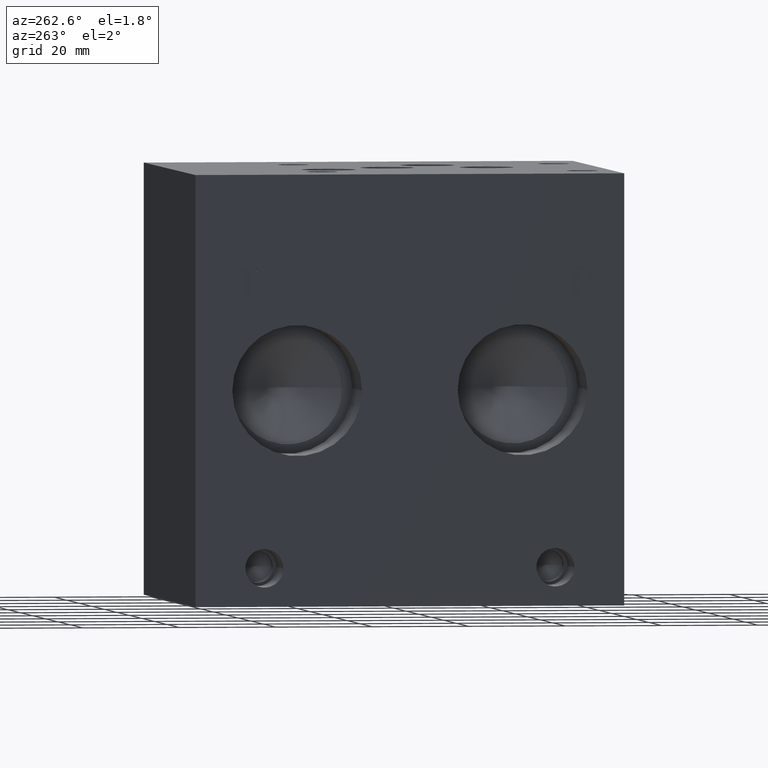
[diagram: clean part render]
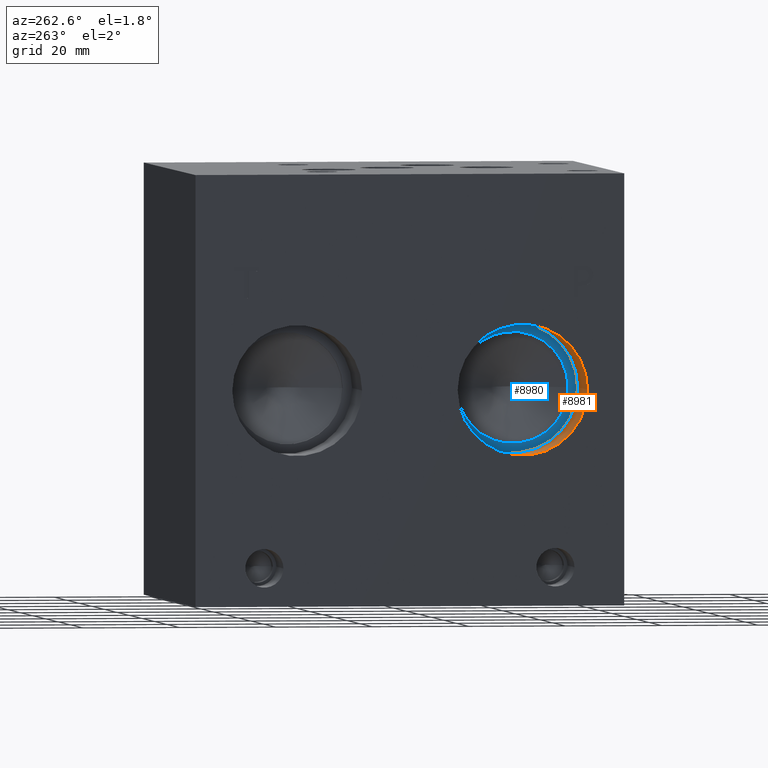
[diagram: same view with the hole feature highlighted: cylindrical wall and planar end face, labeled with their STEP entity ids]
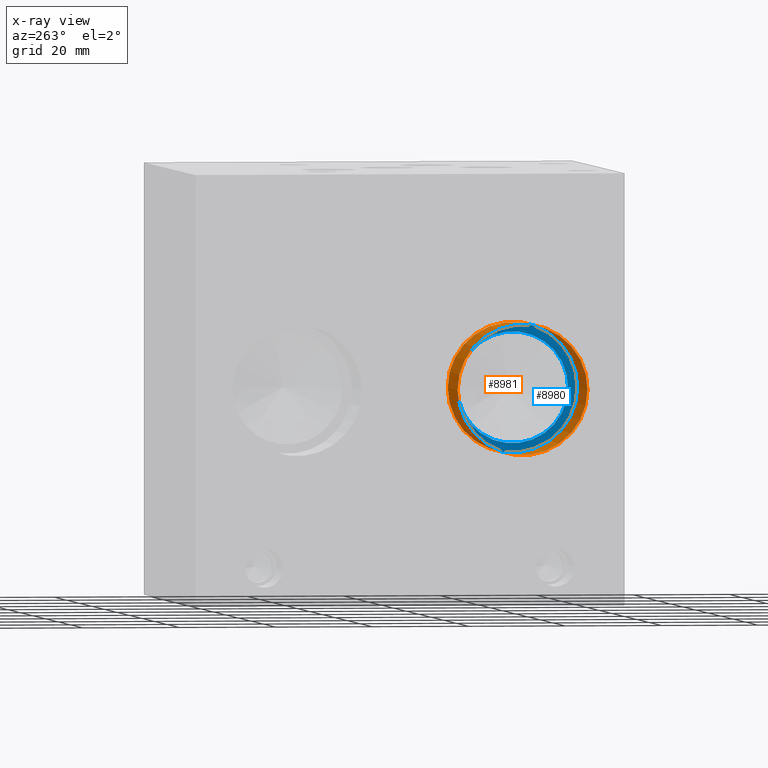
[diagram: x-ray of the same camera — body ghosted, the hole faces saturated]
A machine part, auxiliary view. The highlighted faces form one hole feature of diameter 26.924 mm: the cylindrical wall (entity #8981, orange) and its adjacent planar end face (entity #8980, blue) — they share a circular edge in the B-rep.
The next image is the same camera in x-ray (body ghosted, the hole faces saturated) — the bore reads through the body.
Wall:
#16=CYLINDRICAL_SURFACE('',#9367,13.462);
#72=CIRCLE('',#9285,13.462);
#73=CIRCLE('',#9286,13.462);
#91=CIRCLE('',#9364,13.462);
#92=CIRCLE('',#9365,13.462);
#937=FACE_OUTER_BOUND('',#1448,.T.);
#1448=EDGE_LOOP('',(#7771,#7772,#7773,#7774,#7775,#7776));
#2367=LINE('',#15107,#3250);
#3250=VECTOR('',#10970,13.462);
#4140=VERTEX_POINT('',#14402);
#4141=VERTEX_POINT('',#14403);
#4279=VERTEX_POINT('',#15100);
#4280=VERTEX_POINT('',#15101);
#5273=EDGE_CURVE('',#4140,#4141,#72,.T.);
#5274=EDGE_CURVE('',#4141,#4140,#73,.T.);
#5482=EDGE_CURVE('',#4279,#4280,#91,.T.);
#5483=EDGE_CURVE('',#4280,#4279,#92,.T.);
#5485=EDGE_CURVE('',#4141,#4280,#2367,.T.);
#7771=ORIENTED_EDGE('',*,*,#5273,.F.);
#7772=ORIENTED_EDGE('',*,*,#5274,.F.);
#7773=ORIENTED_EDGE('',*,*,#5485,.T.);
#7774=ORIENTED_EDGE('',*,*,#5482,.F.);
#7775=ORIENTED_EDGE('',*,*,#5483,.F.);
#7776=ORIENTED_EDGE('',*,*,#5485,.F.);
#8981=ADVANCED_FACE('',(#937),#16,.F.);
#9285=AXIS2_PLACEMENT_3D('',#14404,#10652,#10653);
#9286=AXIS2_PLACEMENT_3D('',#14405,#10654,#10655);
#9364=AXIS2_PLACEMENT_3D('',#15102,#10962,#10963);
#9365=AXIS2_PLACEMENT_3D('',#15103,#10964,#10965);
#9367=AXIS2_PLACEMENT_3D('',#15106,#10968,#10969);
#10652=DIRECTION('center_axis',(1.,0.,0.));
#10653=DIRECTION('ref_axis',(0.,1.,0.));
#10654=DIRECTION('center_axis',(1.,0.,0.));
#10655=DIRECTION('ref_axis',(0.,1.,0.));
#10962=DIRECTION('center_axis',(-1.,0.,0.));
#10963=DIRECTION('ref_axis',(0.,1.,0.));
#10964=DIRECTION('center_axis',(-1.,0.,0.));
#10965=DIRECTION('ref_axis',(0.,1.,0.));
#10968=DIRECTION('center_axis',(-1.,0.,0.));
#10969=DIRECTION('ref_axis',(0.,1.,0.));
#10970=DIRECTION('',(1.,0.,0.));
#14402=CARTESIAN_POINT('',(0.,34.544,44.45));
#14403=CARTESIAN_POINT('',(1.11022302462516E-15,7.62,44.45));
#14404=CARTESIAN_POINT('Origin',(0.,21.082,44.45));
#14405=CARTESIAN_POINT('Origin',(0.,21.082,44.45));
#15100=CARTESIAN_POINT('',(15.8496,34.544,44.45));
#15101=CARTESIAN_POINT('',(15.8496,7.62,44.45));
#15102=CARTESIAN_POINT('Origin',(15.8496,21.082,44.45));
#15103=CARTESIAN_POINT('Origin',(15.8496,21.082,44.45));
#15106=CARTESIAN_POINT('Origin',(7.9248,21.082,44.45));
#15107=CARTESIAN_POINT('',(7.9248,7.62,44.45));
End face:
#91=CIRCLE('',#9364,13.462);
#92=CIRCLE('',#9365,13.462);
#93=CIRCLE('',#9366,11.5062);
#227=FACE_BOUND('',#1447,.T.);
#521=PLANE('',#9363);
#936=FACE_OUTER_BOUND('',#1446,.T.);
#1446=EDGE_LOOP('',(#7768,#7769));
#1447=EDGE_LOOP('',(#7770));
#4279=VERTEX_POINT('',#15100);
#4280=VERTEX_POINT('',#15101);
#4281=VERTEX_POINT('',#15104);
#5482=EDGE_CURVE('',#4279,#4280,#91,.T.);
#5483=EDGE_CURVE('',#4280,#4279,#92,.T.);
#5484=EDGE_CURVE('',#4281,#4281,#93,.T.);
#7768=ORIENTED_EDGE('',*,*,#5482,.T.);
#7769=ORIENTED_EDGE('',*,*,#5483,.T.);
#7770=ORIENTED_EDGE('',*,*,#5484,.F.);
#8980=ADVANCED_FACE('',(#936,#227),#521,.T.);
#9363=AXIS2_PLACEMENT_3D('',#15099,#10960,#10961);
#9364=AXIS2_PLACEMENT_3D('',#15102,#10962,#10963);
#9365=AXIS2_PLACEMENT_3D('',#15103,#10964,#10965);
#9366=AXIS2_PLACEMENT_3D('',#15105,#10966,#10967);
#10960=DIRECTION('center_axis',(-1.,0.,0.));
#10961=DIRECTION('ref_axis',(0.,1.,0.));
#10962=DIRECTION('center_axis',(-1.,0.,0.));
#10963=DIRECTION('ref_axis',(0.,1.,0.));
#10964=DIRECTION('center_axis',(-1.,0.,0.));
#10965=DIRECTION('ref_axis',(0.,1.,0.));
#10966=DIRECTION('center_axis',(-1.,0.,0.));
#10967=DIRECTION('ref_axis',(0.,1.,0.));
#15099=CARTESIAN_POINT('Origin',(15.8496,21.082,44.45));
#15100=CARTESIAN_POINT('',(15.8496,34.544,44.45));
#15101=CARTESIAN_POINT('',(15.8496,7.62,44.45));
#15102=CARTESIAN_POINT('Origin',(15.8496,21.082,44.45));
#15103=CARTESIAN_POINT('Origin',(15.8496,21.082,44.45));
#15104=CARTESIAN_POINT('',(15.8496,9.5758,44.45));
#15105=CARTESIAN_POINT('Origin',(15.8496,21.082,44.45));